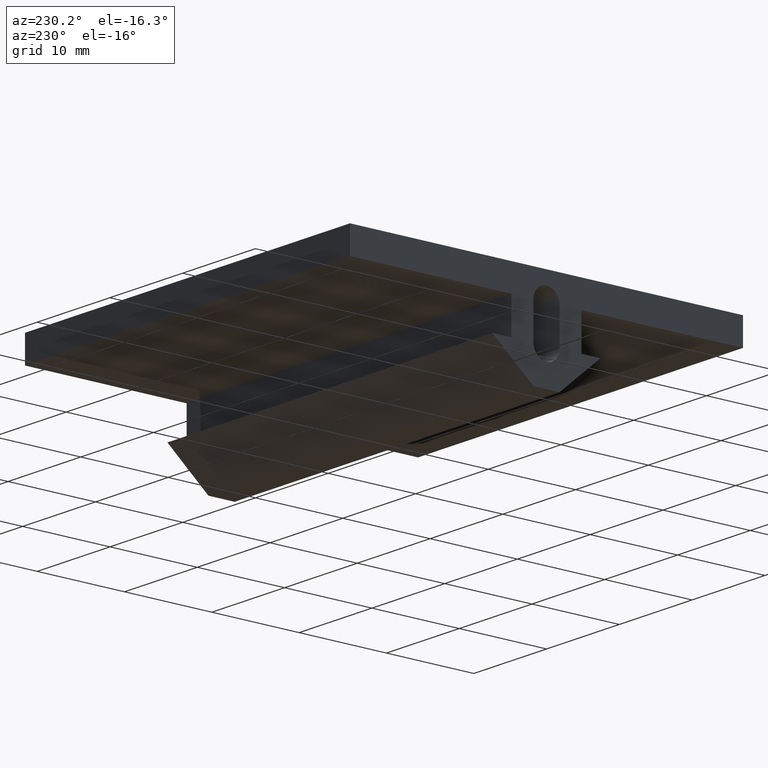
[diagram: clean part render]
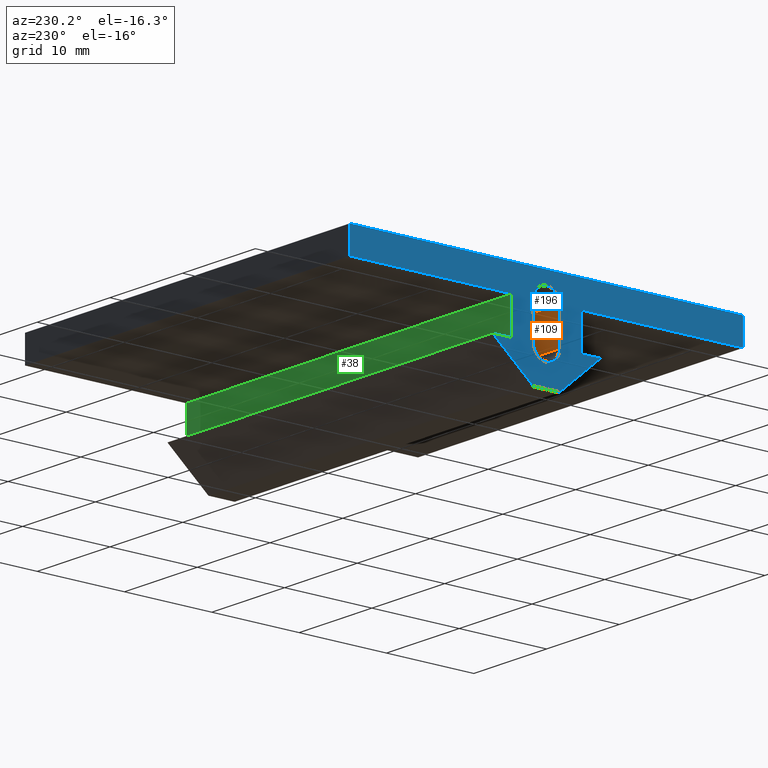
[diagram: same view with three faces highlighted in distinct colors, each labeled with its STEP entity id]
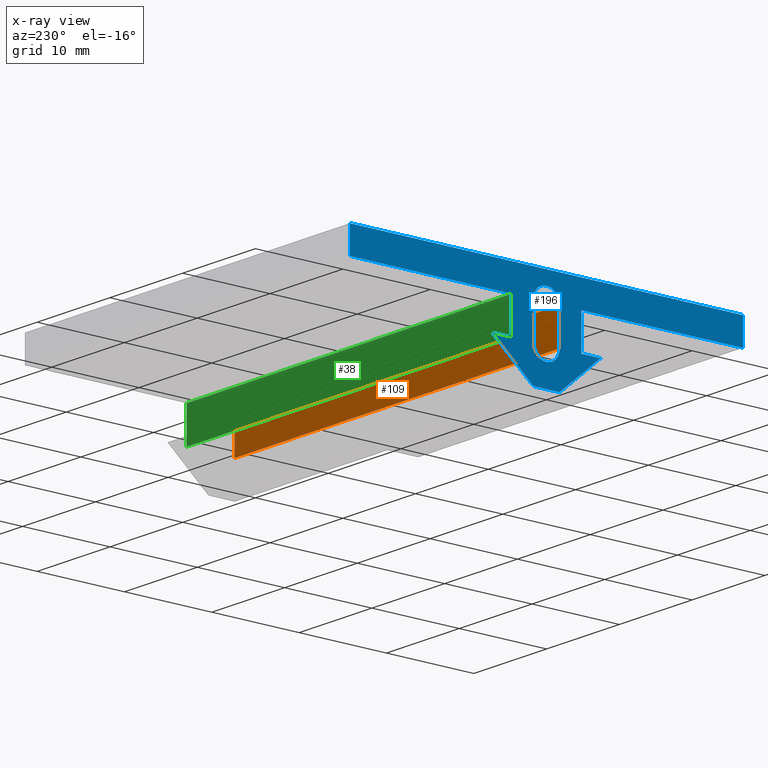
[diagram: x-ray of the same camera — body ghosted, the three highlighted faces saturated]
A machine part, auxiliary view with three faces highlighted in distinct colors.
The next image is the same camera in x-ray (body ghosted, the three faces saturated) — at least one of them is partly hidden behind the body in this view.
Their STEP definitions:

[orange] entity #109 — the highlighted planar face has unit normal (-0, 1, 0).
#90 = EDGE_CURVE ( 'NONE', #309, #91, #410, .T. ) ;
#91 = VERTEX_POINT ( 'NONE', #406 ) ;
#102 = VERTEX_POINT ( 'NONE', #526 ) ;
#104 = EDGE_CURVE ( 'NONE', #105, #102, #332, .T. ) ;
#105 = VERTEX_POINT ( 'NONE', #328 ) ;
#109 = ADVANCED_FACE ( 'NONE', ( #322 ), #321, .T. ) ;
#110 = EDGE_LOOP ( 'NONE', ( #111, #113, #114, #311 ) ) ;
#111 = ORIENTED_EDGE ( 'NONE', *, *, #112, .F. ) ;
#112 = EDGE_CURVE ( 'NONE', #91, #102, #315, .T. ) ;
#113 = ORIENTED_EDGE ( 'NONE', *, *, #90, .F. ) ;
#114 = ORIENTED_EDGE ( 'NONE', *, *, #310, .T. ) ;
#309 = VERTEX_POINT ( 'NONE', #664 ) ;
#310 = EDGE_CURVE ( 'NONE', #309, #105, #663, .T. ) ;
#311 = ORIENTED_EDGE ( 'NONE', *, *, #104, .T. ) ;
#315 = LINE ( 'NONE', #319, #477 ) ;
#316 = DIRECTION ( 'NONE',  ( 0.0000000000000000000, -2.168404344971008600E-016, 1.000000000000000000 ) ) ;
#317 = DIRECTION ( 'NONE',  ( -0.0000000000000000000, 1.000000000000000000, 2.168404344971008600E-016 ) ) ;
#318 = CARTESIAN_POINT ( 'NONE',  ( 44.66704193895279200, -1.500000000000000000, -3.000000000000000400 ) ) ;
#319 = CARTESIAN_POINT ( 'NONE',  ( 0.0000000000000000000, -1.500000000000000000, -3.000000000000000400 ) ) ;
#320 = AXIS2_PLACEMENT_3D ( 'NONE', #318, #317, #316 ) ;
#321 = PLANE ( 'NONE',  #320 ) ;
#322 = FACE_OUTER_BOUND ( 'NONE', #110, .T. ) ;
#328 = CARTESIAN_POINT ( 'NONE',  ( 44.66704193895279200, -1.499999999999999100, -7.000000000000000000 ) ) ;
#329 = DIRECTION ( 'NONE',  ( -1.000000000000000000, -0.0000000000000000000, -0.0000000000000000000 ) ) ;
#330 = VECTOR ( 'NONE', #329, 1000.000000000000000 ) ;
#331 = CARTESIAN_POINT ( 'NONE',  ( 44.66704193895279200, -1.499999999999999100, -7.000000000000000000 ) ) ;
#332 = LINE ( 'NONE', #331, #330 ) ;
#406 = CARTESIAN_POINT ( 'NONE',  ( 0.0000000000000000000, -1.500000000000000000, -3.000000000000000400 ) ) ;
#407 = DIRECTION ( 'NONE',  ( -1.000000000000000000, -0.0000000000000000000, -0.0000000000000000000 ) ) ;
#408 = VECTOR ( 'NONE', #407, 1000.000000000000000 ) ;
#409 = CARTESIAN_POINT ( 'NONE',  ( 44.66704193895279200, -1.500000000000000000, -3.000000000000000400 ) ) ;
#410 = LINE ( 'NONE', #409, #408 ) ;
#476 = DIRECTION ( 'NONE',  ( 0.0000000000000000000, 2.168404344971008900E-016, -1.000000000000000000 ) ) ;
#477 = VECTOR ( 'NONE', #476, 1000.000000000000000 ) ;
#526 = CARTESIAN_POINT ( 'NONE',  ( 0.0000000000000000000, -1.499999999999999100, -7.000000000000000000 ) ) ;
#660 = DIRECTION ( 'NONE',  ( 0.0000000000000000000, 2.168404344971008900E-016, -1.000000000000000000 ) ) ;
#661 = VECTOR ( 'NONE', #660, 1000.000000000000000 ) ;
#662 = CARTESIAN_POINT ( 'NONE',  ( 44.66704193895279200, -1.500000000000000000, -3.000000000000000400 ) ) ;
#663 = LINE ( 'NONE', #662, #661 ) ;
#664 = CARTESIAN_POINT ( 'NONE',  ( 44.66704193895279200, -1.500000000000000000, -3.000000000000000400 ) ) ;

[blue] entity #196 — the highlighted planar face has unit normal (1, -0, 0).
#1 = EDGE_CURVE ( 'NONE', #173, #171, #128, .T. ) ;
#15 = VERTEX_POINT ( 'NONE', #150 ) ;
#19 = EDGE_CURVE ( 'NONE', #201, #15, #148, .T. ) ;
#23 = EDGE_CURVE ( 'NONE', #15, #218, #281, .T. ) ;
#28 = EDGE_CURVE ( 'NONE', #218, #29, #250, .T. ) ;
#29 = VERTEX_POINT ( 'NONE', #246 ) ;
#42 = VERTEX_POINT ( 'NONE', #271 ) ;
#57 = VERTEX_POINT ( 'NONE', #501 ) ;
#65 = EDGE_CURVE ( 'NONE', #76, #66, #432, .T. ) ;
#66 = VERTEX_POINT ( 'NONE', #428 ) ;
#74 = EDGE_CURVE ( 'NONE', #42, #76, #419, .T. ) ;
#76 = VERTEX_POINT ( 'NONE', #415 ) ;
#79 = EDGE_CURVE ( 'NONE', #29, #42, #414, .T. ) ;
#91 = VERTEX_POINT ( 'NONE', #406 ) ;
#94 = EDGE_CURVE ( 'NONE', #171, #91, #399, .T. ) ;
#102 = VERTEX_POINT ( 'NONE', #526 ) ;
#112 = EDGE_CURVE ( 'NONE', #91, #102, #315, .T. ) ;
#124 = DIRECTION ( 'NONE',  ( 0.0000000000000000000, 0.0000000000000000000, -1.000000000000000000 ) ) ;
#125 = DIRECTION ( 'NONE',  ( 1.000000000000000000, 0.0000000000000000000, 0.0000000000000000000 ) ) ;
#126 = CARTESIAN_POINT ( 'NONE',  ( 0.0000000000000000000, 3.673819061467131800E-016, -3.000000000000000000 ) ) ;
#127 = AXIS2_PLACEMENT_3D ( 'NONE', #126, #125, #124 ) ;
#128 = CIRCLE ( 'NONE', #127, 1.500000000000000400 ) ;
#130 = ORIENTED_EDGE ( 'NONE', *, *, #200, .F. ) ;
#131 = ORIENTED_EDGE ( 'NONE', *, *, #65, .F. ) ;
#132 = ORIENTED_EDGE ( 'NONE', *, *, #74, .F. ) ;
#133 = ORIENTED_EDGE ( 'NONE', *, *, #313, .F. ) ;
#134 = ORIENTED_EDGE ( 'NONE', *, *, #23, .F. ) ;
#135 = ORIENTED_EDGE ( 'NONE', *, *, #79, .F. ) ;
#136 = ORIENTED_EDGE ( 'NONE', *, *, #255, .F. ) ;
#138 = ORIENTED_EDGE ( 'NONE', *, *, #28, .F. ) ;
#139 = ORIENTED_EDGE ( 'NONE', *, *, #19, .F. ) ;
#140 = ORIENTED_EDGE ( 'NONE', *, *, #94, .T. ) ;
#141 = EDGE_LOOP ( 'NONE', ( #193, #194, #195, #131, #132, #135, #138, #134, #139, #130, #133, #136 ) ) ;
#142 = EDGE_LOOP ( 'NONE', ( #192, #140, #191, #190, #143 ) ) ;
#143 = ORIENTED_EDGE ( 'NONE', *, *, #299, .T. ) ;
#148 = LINE ( 'NONE', #284, #283 ) ;
#150 = CARTESIAN_POINT ( 'NONE',  ( 0.0000000000000000000, -1.499999999999998700, -11.00000000000000000 ) ) ;
#171 = VERTEX_POINT ( 'NONE', #462 ) ;
#173 = VERTEX_POINT ( 'NONE', #461 ) ;
#190 = ORIENTED_EDGE ( 'NONE', *, *, #231, .T. ) ;
#191 = ORIENTED_EDGE ( 'NONE', *, *, #112, .T. ) ;
#192 = ORIENTED_EDGE ( 'NONE', *, *, #1, .T. ) ;
#193 = ORIENTED_EDGE ( 'NONE', *, *, #205, .F. ) ;
#194 = ORIENTED_EDGE ( 'NONE', *, *, #259, .F. ) ;
#195 = ORIENTED_EDGE ( 'NONE', *, *, #235, .F. ) ;
#196 = ADVANCED_FACE ( 'NONE', ( #460, #459 ), #458, .F. ) ;
#200 = EDGE_CURVE ( 'NONE', #57, #201, #519, .T. ) ;
#201 = VERTEX_POINT ( 'NONE', #515 ) ;
#205 = EDGE_CURVE ( 'NONE', #206, #207, #508, .T. ) ;
#206 = VERTEX_POINT ( 'NONE', #504 ) ;
#207 = VERTEX_POINT ( 'NONE', #503 ) ;
#218 = VERTEX_POINT ( 'NONE', #368 ) ;
#231 = EDGE_CURVE ( 'NONE', #102, #300, #349, .T. ) ;
#232 = VERTEX_POINT ( 'NONE', #341 ) ;
#235 = EDGE_CURVE ( 'NONE', #66, #232, #339, .T. ) ;
#246 = CARTESIAN_POINT ( 'NONE',  ( 0.0000000000000000000, 6.191319751992913300, -7.000000000000001800 ) ) ;
#247 = DIRECTION ( 'NONE',  ( -0.0000000000000000000, 0.7609476459801682900, 0.6488132859900761500 ) ) ;
#248 = VECTOR ( 'NONE', #247, 1000.000000000000200 ) ;
#249 = CARTESIAN_POINT ( 'NONE',  ( 0.0000000000000000000, 6.191319751992913300, -7.000000000000001800 ) ) ;
#250 = LINE ( 'NONE', #249, #248 ) ;
#255 = EDGE_CURVE ( 'NONE', #207, #256, #485, .T. ) ;
#256 = VERTEX_POINT ( 'NONE', #569 ) ;
#259 = EDGE_CURVE ( 'NONE', #232, #206, #607, .T. ) ;
#270 = VECTOR ( 'NONE', #608, 1000.000000000000000 ) ;
#271 = CARTESIAN_POINT ( 'NONE',  ( 0.0000000000000000000, 4.000000000000003600, -7.000000000000001800 ) ) ;
#278 = DIRECTION ( 'NONE',  ( 0.0000000000000000000, 1.000000000000000000, 0.0000000000000000000 ) ) ;
#279 = VECTOR ( 'NONE', #278, 1000.000000000000000 ) ;
#280 = CARTESIAN_POINT ( 'NONE',  ( 0.0000000000000000000, -1.499999999999998700, -11.00000000000000000 ) ) ;
#281 = LINE ( 'NONE', #280, #279 ) ;
#282 = DIRECTION ( 'NONE',  ( 0.0000000000000000000, 0.7609476459801684000, -0.6488132859900761500 ) ) ;
#283 = VECTOR ( 'NONE', #282, 1000.000000000000000 ) ;
#284 = CARTESIAN_POINT ( 'NONE',  ( 0.0000000000000000000, -6.191319751992911500, -7.000000000000003600 ) ) ;
#299 = EDGE_CURVE ( 'NONE', #300, #173, #562, .T. ) ;
#300 = VERTEX_POINT ( 'NONE', #558 ) ;
#313 = EDGE_CURVE ( 'NONE', #256, #57, #653, .T. ) ;
#315 = LINE ( 'NONE', #319, #477 ) ;
#319 = CARTESIAN_POINT ( 'NONE',  ( 0.0000000000000000000, -1.500000000000000000, -3.000000000000000400 ) ) ;
#337 = VECTOR ( 'NONE', #491, 1000.000000000000000 ) ;
#338 = CARTESIAN_POINT ( 'NONE',  ( 0.0000000000000000000, 22.50000000000000000, 5.510728592200697700E-015 ) ) ;
#339 = LINE ( 'NONE', #338, #337 ) ;
#341 = CARTESIAN_POINT ( 'NONE',  ( 0.0000000000000000000, 22.50000000000000000, 5.510728592200697700E-015 ) ) ;
#342 = DIRECTION ( 'NONE',  ( 0.0000000000000000000, 0.0000000000000000000, -1.000000000000000000 ) ) ;
#343 = DIRECTION ( 'NONE',  ( 1.000000000000000000, 0.0000000000000000000, 0.0000000000000000000 ) ) ;
#344 = CARTESIAN_POINT ( 'NONE',  ( 0.0000000000000000000, 8.572244476756639800E-016, -7.000000000000000900 ) ) ;
#345 = AXIS2_PLACEMENT_3D ( 'NONE', #344, #343, #342 ) ;
#349 = CIRCLE ( 'NONE', #345, 1.499999999999999600 ) ;
#368 = CARTESIAN_POINT ( 'NONE',  ( 0.0000000000000000000, 1.500000000000001300, -11.00000000000000000 ) ) ;
#395 = DIRECTION ( 'NONE',  ( 0.0000000000000000000, 0.0000000000000000000, -1.000000000000000000 ) ) ;
#396 = DIRECTION ( 'NONE',  ( 1.000000000000000000, 0.0000000000000000000, 0.0000000000000000000 ) ) ;
#397 = CARTESIAN_POINT ( 'NONE',  ( 0.0000000000000000000, 3.673819061467131800E-016, -3.000000000000000000 ) ) ;
#398 = AXIS2_PLACEMENT_3D ( 'NONE', #397, #396, #395 ) ;
#399 = CIRCLE ( 'NONE', #398, 1.500000000000000400 ) ;
#406 = CARTESIAN_POINT ( 'NONE',  ( 0.0000000000000000000, -1.500000000000000000, -3.000000000000000400 ) ) ;
#411 = DIRECTION ( 'NONE',  ( -0.0000000000000000000, -1.000000000000000000, -0.0000000000000000000 ) ) ;
#412 = VECTOR ( 'NONE', #411, 1000.000000000000000 ) ;
#413 = CARTESIAN_POINT ( 'NONE',  ( 0.0000000000000000000, 4.000000000000003600, -7.000000000000001800 ) ) ;
#414 = LINE ( 'NONE', #413, #412 ) ;
#415 = CARTESIAN_POINT ( 'NONE',  ( 0.0000000000000000000, 4.000000000000000000, -2.999999999999999100 ) ) ;
#416 = DIRECTION ( 'NONE',  ( -0.0000000000000000000, -8.673617379884029600E-016, 1.000000000000000000 ) ) ;
#417 = VECTOR ( 'NONE', #416, 1000.000000000000000 ) ;
#418 = CARTESIAN_POINT ( 'NONE',  ( 0.0000000000000000000, 4.000000000000000000, -2.999999999999999100 ) ) ;
#419 = LINE ( 'NONE', #418, #417 ) ;
#428 = CARTESIAN_POINT ( 'NONE',  ( 0.0000000000000000000, 22.50000000000000000, -2.999999999999994200 ) ) ;
#429 = DIRECTION ( 'NONE',  ( -0.0000000000000000000, 1.000000000000000000, 2.578643004830388900E-016 ) ) ;
#430 = VECTOR ( 'NONE', #429, 1000.000000000000000 ) ;
#431 = CARTESIAN_POINT ( 'NONE',  ( 0.0000000000000000000, 22.50000000000000000, -2.999999999999994200 ) ) ;
#432 = LINE ( 'NONE', #431, #430 ) ;
#453 = DIRECTION ( 'NONE',  ( 0.0000000000000000000, 0.0000000000000000000, -1.000000000000000000 ) ) ;
#454 = DIRECTION ( 'NONE',  ( 1.000000000000000000, -0.0000000000000000000, 0.0000000000000000000 ) ) ;
#455 = CARTESIAN_POINT ( 'NONE',  ( 0.0000000000000000000, -22.50000000000000000, -3.000000000000000000 ) ) ;
#456 = AXIS2_PLACEMENT_3D ( 'NONE', #455, #454, #453 ) ;
#458 = PLANE ( 'NONE',  #456 ) ;
#459 = FACE_OUTER_BOUND ( 'NONE', #141, .T. ) ;
#460 = FACE_BOUND ( 'NONE', #142, .T. ) ;
#461 = CARTESIAN_POINT ( 'NONE',  ( 0.0000000000000000000, 1.500000000000000900, -3.000000000000000000 ) ) ;
#462 = CARTESIAN_POINT ( 'NONE',  ( 0.0000000000000000000, 3.673819061467131800E-016, -1.499999999999999600 ) ) ;
#476 = DIRECTION ( 'NONE',  ( 0.0000000000000000000, 2.168404344971008900E-016, -1.000000000000000000 ) ) ;
#477 = VECTOR ( 'NONE', #476, 1000.000000000000000 ) ;
#484 = CARTESIAN_POINT ( 'NONE',  ( 0.0000000000000000000, -22.50000000000000000, -3.000000000000000000 ) ) ;
#485 = LINE ( 'NONE', #484, #270 ) ;
#491 = DIRECTION ( 'NONE',  ( -0.0000000000000000000, -0.0000000000000000000, 1.000000000000000000 ) ) ;
#501 = CARTESIAN_POINT ( 'NONE',  ( 0.0000000000000000000, -4.000000000000001800, -7.000000000000002700 ) ) ;
#503 = CARTESIAN_POINT ( 'NONE',  ( 0.0000000000000000000, -22.50000000000000000, -3.000000000000000000 ) ) ;
#504 = CARTESIAN_POINT ( 'NONE',  ( 0.0000000000000000000, -22.50000000000000000, 0.0000000000000000000 ) ) ;
#505 = DIRECTION ( 'NONE',  ( 0.0000000000000000000, 0.0000000000000000000, -1.000000000000000000 ) ) ;
#506 = VECTOR ( 'NONE', #505, 1000.000000000000000 ) ;
#507 = CARTESIAN_POINT ( 'NONE',  ( 0.0000000000000000000, -22.50000000000000000, 0.0000000000000000000 ) ) ;
#508 = LINE ( 'NONE', #507, #506 ) ;
#515 = CARTESIAN_POINT ( 'NONE',  ( 0.0000000000000000000, -6.191319751992911500, -7.000000000000003600 ) ) ;
#516 = DIRECTION ( 'NONE',  ( 0.0000000000000000000, -1.000000000000000000, -3.958170582816934900E-016 ) ) ;
#517 = VECTOR ( 'NONE', #516, 1000.000000000000000 ) ;
#518 = CARTESIAN_POINT ( 'NONE',  ( 0.0000000000000000000, -4.000000000000001800, -7.000000000000002700 ) ) ;
#519 = LINE ( 'NONE', #518, #517 ) ;
#526 = CARTESIAN_POINT ( 'NONE',  ( 0.0000000000000000000, -1.499999999999999100, -7.000000000000000000 ) ) ;
#558 = CARTESIAN_POINT ( 'NONE',  ( 0.0000000000000000000, 1.500000000000000900, -7.000000000000000000 ) ) ;
#559 = DIRECTION ( 'NONE',  ( 0.0000000000000000000, 0.0000000000000000000, 1.000000000000000000 ) ) ;
#560 = VECTOR ( 'NONE', #559, 1000.000000000000000 ) ;
#561 = CARTESIAN_POINT ( 'NONE',  ( 0.0000000000000000000, 1.500000000000000900, -7.000000000000000000 ) ) ;
#562 = LINE ( 'NONE', #561, #560 ) ;
#569 = CARTESIAN_POINT ( 'NONE',  ( 0.0000000000000000000, -4.000000000000000000, -3.000000000000000000 ) ) ;
#584 = DIRECTION ( 'NONE',  ( 0.0000000000000000000, -4.336808689942014800E-016, -1.000000000000000000 ) ) ;
#585 = VECTOR ( 'NONE', #584, 1000.000000000000000 ) ;
#586 = CARTESIAN_POINT ( 'NONE',  ( 0.0000000000000000000, -4.000000000000000000, -3.000000000000000000 ) ) ;
#606 = CARTESIAN_POINT ( 'NONE',  ( 0.0000000000000000000, -22.50000000000000000, 0.0000000000000000000 ) ) ;
#607 = LINE ( 'NONE', #606, #673 ) ;
#608 = DIRECTION ( 'NONE',  ( 0.0000000000000000000, 1.000000000000000000, 0.0000000000000000000 ) ) ;
#653 = LINE ( 'NONE', #586, #585 ) ;
#672 = DIRECTION ( 'NONE',  ( -0.0000000000000000000, -1.000000000000000000, -1.224606353822377500E-016 ) ) ;
#673 = VECTOR ( 'NONE', #672, 1000.000000000000000 ) ;

[green] entity #38 — the highlighted planar face has unit normal (0, -1, -0).
#38 = ADVANCED_FACE ( 'NONE', ( #181 ), #177, .F. ) ;
#40 = VERTEX_POINT ( 'NONE', #178 ) ;
#41 = EDGE_CURVE ( 'NONE', #40, #42, #275, .T. ) ;
#42 = VERTEX_POINT ( 'NONE', #271 ) ;
#43 = ORIENTED_EDGE ( 'NONE', *, *, #74, .T. ) ;
#67 = VERTEX_POINT ( 'NONE', #427 ) ;
#69 = EDGE_CURVE ( 'NONE', #40, #67, #448, .T. ) ;
#70 = ORIENTED_EDGE ( 'NONE', *, *, #41, .T. ) ;
#71 = ORIENTED_EDGE ( 'NONE', *, *, #69, .F. ) ;
#73 = EDGE_CURVE ( 'NONE', #67, #76, #444, .T. ) ;
#74 = EDGE_CURVE ( 'NONE', #42, #76, #419, .T. ) ;
#75 = ORIENTED_EDGE ( 'NONE', *, *, #73, .F. ) ;
#76 = VERTEX_POINT ( 'NONE', #415 ) ;
#78 = EDGE_LOOP ( 'NONE', ( #43, #75, #71, #70 ) ) ;
#176 = AXIS2_PLACEMENT_3D ( 'NONE', #180, #179, #276 ) ;
#177 = PLANE ( 'NONE',  #176 ) ;
#178 = CARTESIAN_POINT ( 'NONE',  ( 44.66704193895279200, 4.000000000000003600, -7.000000000000001800 ) ) ;
#179 = DIRECTION ( 'NONE',  ( 0.0000000000000000000, -1.000000000000000000, -8.673617379884029600E-016 ) ) ;
#180 = CARTESIAN_POINT ( 'NONE',  ( 44.66704193895279200, 4.000000000000000000, -2.999999999999999100 ) ) ;
#181 = FACE_OUTER_BOUND ( 'NONE', #78, .T. ) ;
#271 = CARTESIAN_POINT ( 'NONE',  ( 0.0000000000000000000, 4.000000000000003600, -7.000000000000001800 ) ) ;
#272 = DIRECTION ( 'NONE',  ( -1.000000000000000000, -0.0000000000000000000, -0.0000000000000000000 ) ) ;
#273 = VECTOR ( 'NONE', #272, 1000.000000000000000 ) ;
#274 = CARTESIAN_POINT ( 'NONE',  ( 44.66704193895279200, 4.000000000000003600, -7.000000000000001800 ) ) ;
#275 = LINE ( 'NONE', #274, #273 ) ;
#276 = DIRECTION ( 'NONE',  ( 0.0000000000000000000, 8.673617379884029600E-016, -1.000000000000000000 ) ) ;
#415 = CARTESIAN_POINT ( 'NONE',  ( 0.0000000000000000000, 4.000000000000000000, -2.999999999999999100 ) ) ;
#416 = DIRECTION ( 'NONE',  ( -0.0000000000000000000, -8.673617379884029600E-016, 1.000000000000000000 ) ) ;
#417 = VECTOR ( 'NONE', #416, 1000.000000000000000 ) ;
#418 = CARTESIAN_POINT ( 'NONE',  ( 0.0000000000000000000, 4.000000000000000000, -2.999999999999999100 ) ) ;
#419 = LINE ( 'NONE', #418, #417 ) ;
#420 = DIRECTION ( 'NONE',  ( -1.000000000000000000, -0.0000000000000000000, -0.0000000000000000000 ) ) ;
#421 = VECTOR ( 'NONE', #420, 1000.000000000000000 ) ;
#422 = CARTESIAN_POINT ( 'NONE',  ( 44.66704193895279200, 4.000000000000000000, -2.999999999999999100 ) ) ;
#427 = CARTESIAN_POINT ( 'NONE',  ( 44.66704193895279200, 4.000000000000000000, -2.999999999999999100 ) ) ;
#444 = LINE ( 'NONE', #422, #421 ) ;
#445 = DIRECTION ( 'NONE',  ( -0.0000000000000000000, -8.673617379884029600E-016, 1.000000000000000000 ) ) ;
#446 = VECTOR ( 'NONE', #445, 1000.000000000000000 ) ;
#447 = CARTESIAN_POINT ( 'NONE',  ( 44.66704193895279200, 4.000000000000000000, -2.999999999999999100 ) ) ;
#448 = LINE ( 'NONE', #447, #446 ) ;